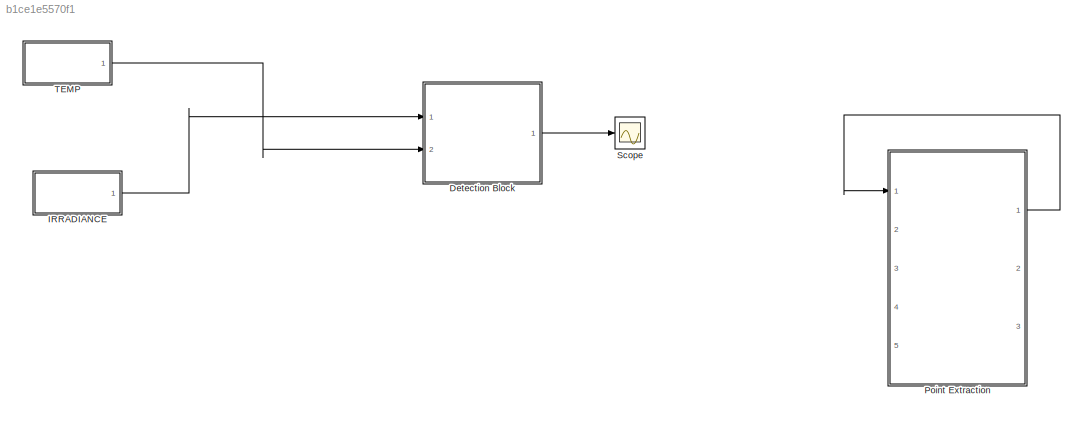
MODEL slx_b1ce1e5570f1
KIND model
CONFIG AbsTol = auto
CONFIG FixedStep = auto
CONFIG MaxStep = auto
CONFIG MinStep = auto
CONFIG RelTol = 1e-3
CONFIG SampleTimeConstraint = Unconstrained
CONFIG Solver = VariableStepAuto
CONFIG SolverMode = Auto
CONFIG SolverName = VariableStepAuto
CONFIG StartTime = 0.0
CONFIG StopTime = 3
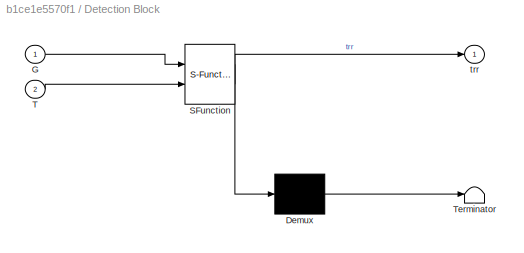
BLOCK [SubSystem] Detection Block
  ErrorFcn = Stateflow.Translate.translate
  PermitHierarchicalResolution = ExplicitOnly
  Ports = [2, 1]
  RequestExecContextInheritance = off
  SFBlockType = MATLAB Function
  TreatAsAtomicUnit = on
  Variant = off
BLOCK [Demux] Detection Block/ Demux 
  Outputs = 1
  Ports = [1, 1]
BLOCK [S-Function] Detection Block/ SFunction 
  EnableBusSupport = on
  FunctionName = sf_sfun
  PortCounts = [2 2]
  Ports = [2, 2]
  SFunctionDeploymentMode = off
  Tag = Stateflow S-Function Scratch_SIMULATION_02 2
BLOCK [Terminator] Detection Block/ Terminator 
BLOCK [Inport] Detection Block/G
  IconDisplay = Port number
BLOCK [Inport] Detection Block/T
  IconDisplay = Port number
  Port = 2
BLOCK [Outport] Detection Block/trr
  IconDisplay = Port number
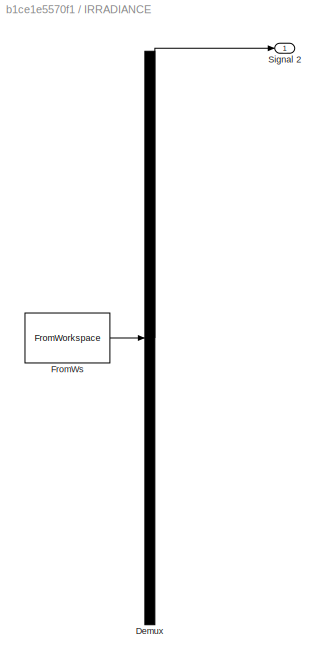
BLOCK [SubSystem] IRRADIANCE
  ClipboardFcn = sigbuilder_block('clipboard');
  CloseFcn = sigbuilder_block('close');
  ContinueFcn = sigbuilder_block('continue');
  CopyFcn = sigbuilder_block('copy');
  DeleteFcn = sigbuilder_block('delete');
  LoadFcn = sigbuilder_block('load');
  MaskHideContents = on
  ModelCloseFcn = sigbuilder_block('modelClose');
  NameChangeFcn = sigbuilder_block('namechange');
  OpenFcn = sigbuilder_block('open',[0.6 0.6 574.8 585.6 ]);
  PauseFcn = sigbuilder_block('pause');
  Ports = [0, 1]
  PreSaveFcn = sigbuilder_block('preSave');
  RequestExecContextInheritance = off
  StartFcn = sigbuilder_block('start');
  StopFcn = sigbuilder_block('stop');
  Tag = STV Subsys
  Variant = off
BLOCK [Demux] IRRADIANCE/Demux
  Outputs = 1
  Ports = [1, 1]
  Tag = STV Demux
BLOCK [FromWorkspace] IRRADIANCE/FromWs
  SampleTime = 0
  Tag = STV FromWs
  VariableName = tuvar
  ZeroCross = on
BLOCK [Outport] IRRADIANCE/Signal 2
  IconDisplay = Port number
  Tag = STV Outport
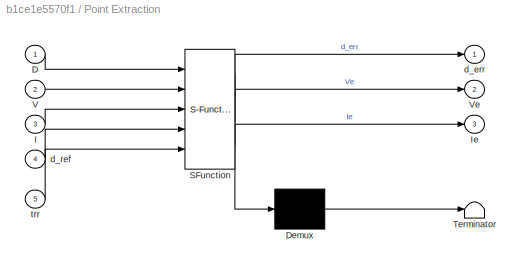
BLOCK [SubSystem] Point Extraction
  ErrorFcn = Stateflow.Translate.translate
  PermitHierarchicalResolution = ExplicitOnly
  Ports = [5, 3]
  RequestExecContextInheritance = off
  SFBlockType = MATLAB Function
  TreatAsAtomicUnit = on
  Variant = off
BLOCK [Demux] Point Extraction/ Demux 
  Outputs = 1
  Ports = [1, 1]
BLOCK [S-Function] Point Extraction/ SFunction 
  EnableBusSupport = off
  FunctionName = sf_sfun
  PortCounts = [5 4]
  Ports = [5, 4]
  SFunctionDeploymentMode = off
  Tag = Stateflow S-Function Scratch_SIMULATION_02 1
BLOCK [Terminator] Point Extraction/ Terminator 
BLOCK [Inport] Point Extraction/D
  IconDisplay = Port number
BLOCK [Inport] Point Extraction/I
  IconDisplay = Port number
  Port = 3
BLOCK [Outport] Point Extraction/Ie
  IconDisplay = Port number
  Port = 3
BLOCK [Inport] Point Extraction/V
  IconDisplay = Port number
  Port = 2
BLOCK [Outport] Point Extraction/Ve
  IconDisplay = Port number
  Port = 2
BLOCK [Outport] Point Extraction/d_err
  IconDisplay = Port number
BLOCK [Inport] Point Extraction/d_ref
  IconDisplay = Port number
  Port = 4
BLOCK [Inport] Point Extraction/trr
  IconDisplay = Port number
  Port = 5
BLOCK [Scope] Scope
  Ports = [1]
  ScopeSpecificationString = Simulink.scopes.TimeScopeBlockCfg('CurrentConfiguration', extmgr.ConfigurationSet(extmgr.Configuration('Core','General UI',true),extmgr.Configuration('Core','Source UI',true),extmgr.Configuration('Sources','WiredSimulink',true,'SampleTime','0.0001'),extmgr.Configuration('Visuals','Time Domain',true,'SerializedDisplays',{struct('MinYLimReal','-0.125','MaxYLimReal','1.125','YLabelReal','','MinYLimMa...<+1444ch>
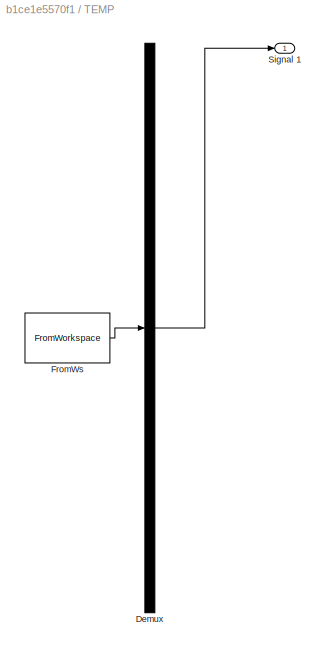
BLOCK [SubSystem] TEMP
  ClipboardFcn = sigbuilder_block('clipboard');
  CloseFcn = sigbuilder_block('close');
  ContinueFcn = sigbuilder_block('continue');
  CopyFcn = sigbuilder_block('copy');
  DeleteFcn = sigbuilder_block('delete');
  LoadFcn = sigbuilder_block('load');
  MaskHideContents = on
  ModelCloseFcn = sigbuilder_block('modelClose');
  NameChangeFcn = sigbuilder_block('namechange');
  OpenFcn = sigbuilder_block('open',[6 28.2 1012.8 484.8 ]);
  PauseFcn = sigbuilder_block('pause');
  Ports = [0, 1]
  PreSaveFcn = sigbuilder_block('preSave');
  RequestExecContextInheritance = off
  StartFcn = sigbuilder_block('start');
  StopFcn = sigbuilder_block('stop');
  Tag = STV Subsys
  Variant = off
BLOCK [Demux] TEMP/Demux
  Outputs = 1
  Ports = [1, 1]
  Tag = STV Demux
BLOCK [FromWorkspace] TEMP/FromWs
  SampleTime = 0
  Tag = STV FromWs
  VariableName = tuvar
  ZeroCross = on
BLOCK [Outport] TEMP/Signal 1
  IconDisplay = Port number
  Tag = STV Outport
LINE Detection Block:1 -> Scope:1
LINE IRRADIANCE:1 -> Detection Block:1
LINE Point Extraction:1 -> Point Extraction:1
LINE TEMP:1 -> Detection Block:2
CHART Point Extraction states=1 transitions=1
  STATE_LABEL 'eML_blk_kernel()'
  STATE_LABEL "SCRIPT:\n\nfunction [d_err,Ve,Ie]= Curve_Fitting(D ,V , I, d_ref, trr)\n             \n     \n\n        persistent d_1 d_2 Vo Io io d_new\n        dataType = 'double';\n      \n        if d_ref ~= d_new\n                 vars = whos;\n                vars = vars([vars.persistent]);\n                varName = {vars.name};\n                clear(varName{:});\n                d_err=d_ref;\n                Ve=[];\n  ...<+1685ch>"
CHART Detection Block states=1 transitions=1
  STATE_LABEL 'eML_blk_kernel()'
  STATE_LABEL "SCRIPT:\nfunction trr= Detection(G,T)\n\n     persistent G_ref\n     \n     dataType = 'double';\n     \n      if isempty(G_ref)\n          G_ref=0;\n      end\n      \n      if G==G_ref\n         \n          trr=0;\n          G_ref=G;\n          \n      else\n          \n          trr=1;\n          G_ref=G;\n          \n      \n      end \n\n\n\nend "
